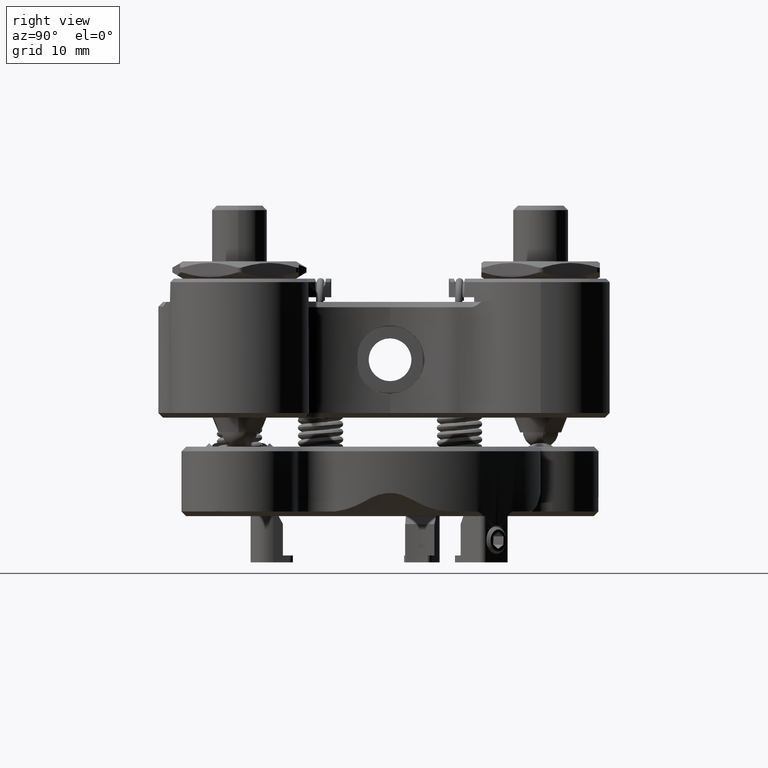
[diagram: clean part render]
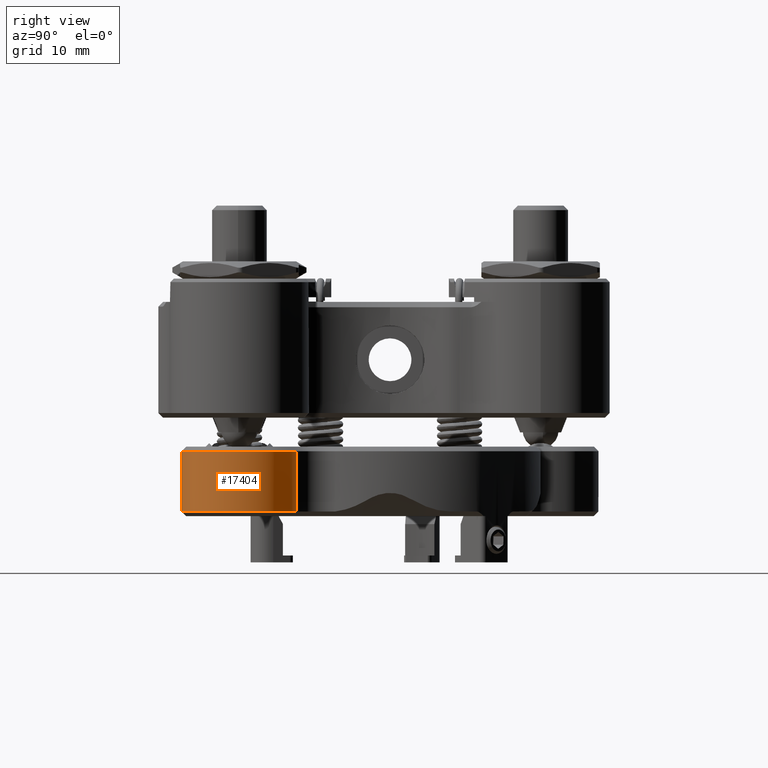
[diagram: same view with one face highlighted and labeled with its STEP entity id]
A machine part, right view. The second image highlights one B-rep face of the part: STEP entity #17404.
In plain terms, the highlighted cylindrical surface (partial cylindrical patch) has radius 6.35 mm, axis along (0, 0, 1).
Its self-contained STEP definition (entity closure, byte-faithful):
#18 = CARTESIAN_POINT ( 'NONE',  ( 19.16643875163893540, -22.29079472304871601, -19.93889061119518402 ) ) ;
#47 = CARTESIAN_POINT ( 'NONE',  ( 16.50999999999978485, -22.86000000000005272, -25.52700000000059433 ) ) ;
#272 = CARTESIAN_POINT ( 'NONE',  ( 18.05863479454287202, -22.68059692580429498, -19.93842287498150867 ) ) ;
#394 = CARTESIAN_POINT ( 'NONE',  ( 22.09981087655261334, -19.52896999693269109, -19.93872338769430996 ) ) ;
#840 = LINE ( 'NONE', #19720, #3925 ) ;
#1329 = FACE_OUTER_BOUND ( 'NONE', #24157, .T. ) ;
#1368 = DIRECTION ( 'NONE',  ( 1.311287036958844925E-14, 1.000000000000000000, 0.000000000000000000 ) ) ;
#1741 = CARTESIAN_POINT ( 'NONE',  ( 18.11057666305611491, -10.36193970020913824, -19.93833868684646760 ) ) ;
#1863 = CARTESIAN_POINT ( 'NONE',  ( 21.68650598508348892, -20.19301302862303160, -19.93873829048567003 ) ) ;
#2098 = CARTESIAN_POINT ( 'NONE',  ( 22.72054069638524965, -17.89068798876667898, -19.93762986016830041 ) ) ;
#2789 = DIRECTION ( 'NONE',  ( -0.000000000000000000, 0.000000000000000000, 1.000000000000000000 ) ) ;
#3108 = CIRCLE ( 'NONE', #23632, 6.350000000000006750 ) ;
#3717 = CARTESIAN_POINT ( 'NONE',  ( 19.21160492882166793, -10.75018763943261035, -19.93842260429730828 ) ) ;
#3732 = EDGE_CURVE ( 'NONE', #7927, #19951, #6104, .T. ) ;
#3925 = VECTOR ( 'NONE', #2789, 1000.000000000000000 ) ;
#4084 = CARTESIAN_POINT ( 'NONE',  ( 20.22487001121071515, -11.34527319561755299, -19.93889059681944076 ) ) ;
#4898 = ORIENTED_EDGE ( 'NONE', *, *, #3732, .F. ) ;
#5513 = EDGE_CURVE ( 'NONE', #7927, #11449, #19384, .T. ) ;
#5707 = CARTESIAN_POINT ( 'NONE',  ( 22.37441136137860553, -14.06674616039854087, -19.93892575446923487 ) ) ;
#5956 = CARTESIAN_POINT ( 'NONE',  ( 22.50275487366840821, -18.64635298766509663, -19.93684085038517395 ) ) ;
#6104 = LINE ( 'NONE', #47, #8756 ) ;
#6773 = DIRECTION ( 'NONE',  ( -1.311287036958845240E-14, -1.000000000000000000, 0.000000000000000000 ) ) ;
#7059 = DIRECTION ( 'NONE',  ( 0.000000000000000000, 0.000000000000000000, -1.000000000000000000 ) ) ;
#7547 = CARTESIAN_POINT ( 'NONE',  ( 21.33157055474867292, -20.66068116289770273, -19.93814990578246693 ) ) ;
#7666 = CARTESIAN_POINT ( 'NONE',  ( 16.90232530087823548, -22.85086947590320605, -19.93834062686309139 ) ) ;
#7796 = CARTESIAN_POINT ( 'NONE',  ( 19.51403859094337889, -22.11806353127566283, -19.93900067073639093 ) ) ;
#7927 = VERTEX_POINT ( 'NONE', #20385 ) ;
#8128 = CARTESIAN_POINT ( 'NONE',  ( 17.72734801847771280, -10.27778018665039284, -13.33500000000058883 ) ) ;
#8485 = CYLINDRICAL_SURFACE ( 'NONE', #10795, 6.350000000000004974 ) ;
#8756 = VECTOR ( 'NONE', #11418, 1000.000000000000000 ) ;
#9280 = CARTESIAN_POINT ( 'NONE',  ( 22.86988045928172397, -16.34214152812691978, -19.93762331428986911 ) ) ;
#9647 = CARTESIAN_POINT ( 'NONE',  ( 22.79318932476617476, -17.50731341378395811, -19.93900115361642733 ) ) ;
#9770 = CARTESIAN_POINT ( 'NONE',  ( 17.92052034477588407, -10.31551280130239512, -19.93413708363767611 ) ) ;
#10795 = AXIS2_PLACEMENT_3D ( 'NONE', #16038, #23699, #6773 ) ;
#10915 = CARTESIAN_POINT ( 'NONE',  ( 17.72734801847733976, -10.27778018665032000, -19.93900000000071415 ) ) ;
#11210 = ORIENTED_EDGE ( 'NONE', *, *, #13901, .T. ) ;
#11391 = CARTESIAN_POINT ( 'NONE',  ( 18.43990311062978549, -22.57215542978062217, -19.93903542143668872 ) ) ;
#11418 = DIRECTION ( 'NONE',  ( -0.000000000000000000, 0.000000000000000000, 1.000000000000000000 ) ) ;
#11449 = VERTEX_POINT ( 'NONE', #10915 ) ;
#11517 = CARTESIAN_POINT ( 'NONE',  ( 20.17778764570676842, -21.70826492328945534, -19.93908240861016168 ) ) ;
#11635 = CARTESIAN_POINT ( 'NONE',  ( 18.66864104573393490, -10.53499617232203533, -19.93950962035742691 ) ) ;
#11764 = CARTESIAN_POINT ( 'NONE',  ( 22.86787564128956163, -16.73476535779692043, -19.93899884495982278 ) ) ;
#12888 = EDGE_CURVE ( 'NONE', #18940, #19951, #3108, .T. ) ;
#13113 = CARTESIAN_POINT ( 'NONE',  ( 22.51375484457377141, -14.43256463242518173, -19.93891959535234548 ) ) ;
#13236 = CARTESIAN_POINT ( 'NONE',  ( 18.48463723341106046, -10.47168078844692474, -19.94055223671033517 ) ) ;
#13479 = CARTESIAN_POINT ( 'NONE',  ( 22.29562034871387866, -13.88564712612485330, -19.93873602868915285 ) ) ;
#13901 = EDGE_CURVE ( 'NONE', #11449, #18940, #840, .T. ) ;
#14691 = CARTESIAN_POINT ( 'NONE',  ( 16.50999999999978485, -22.86000000000005272, -13.33500000000058883 ) ) ;
#14983 = CARTESIAN_POINT ( 'NONE',  ( 22.80091026809526866, -15.56094577514943111, -19.93684280220277572 ) ) ;
#15099 = CARTESIAN_POINT ( 'NONE',  ( 21.79848505808265458, -20.03030762657783370, -19.93892677272785718 ) ) ;
#15219 = CARTESIAN_POINT ( 'NONE',  ( 22.36071038292118374, -19.00846951696573228, -19.93765959781693553 ) ) ;
#15470 = CARTESIAN_POINT ( 'NONE',  ( 17.72734801847733976, -10.27778018665032000, -19.93900000000071415 ) ) ;
#16038 = CARTESIAN_POINT ( 'NONE',  ( 16.50999999999980616, -16.51000000000004775, -25.52700000000059433 ) ) ;
#16828 = CARTESIAN_POINT ( 'NONE',  ( 21.83487818117254520, -13.02868990413630534, -19.93798990414901695 ) ) ;
#16949 = CARTESIAN_POINT ( 'NONE',  ( 16.51000000000012591, -22.86000000000005627, -19.93900000000068573 ) ) ;
#17177 = CARTESIAN_POINT ( 'NONE',  ( 22.73101388009469659, -15.17871678546988257, -19.93766181745037258 ) ) ;
#17312 = CARTESIAN_POINT ( 'NONE',  ( 20.53283145324772363, -11.58141724301075648, -19.93900034724138948 ) ) ;
#17404 = ADVANCED_FACE ( 'NONE', ( #1329 ), #8485, .T. ) ;
#18787 = CARTESIAN_POINT ( 'NONE',  ( 20.49415831691279521, -21.46983813975595723, -19.93870635804587366 ) ) ;
#18940 = VERTEX_POINT ( 'NONE', #8128 ) ;
#19023 = CARTESIAN_POINT ( 'NONE',  ( 17.48369094325781248, -22.78793238127979492, -19.93950718275350198 ) ) ;
#19384 = B_SPLINE_CURVE_WITH_KNOTS ( 'NONE', 3,
 ( #16949, #20770, #7666, #20895, #19023, #272, #11391, #18, #7796, #11517, #18787, #20644, #7547, #1863, #15099, #22870, #394, #15219, #5956, #2098, #9647, #11764, #9280, #14983, #17177, #22614, #13113, #5707, #13479, #21127, #16828, #21011, #22746, #17312, #4084, #22987, #3717, #11635, #13236, #1741, #9770, #15470 ),
 .UNSPECIFIED., .F., .F.,
 ( 4, 2, 2, 2, 2, 2, 2, 2, 2, 2, 2, 2, 2, 2, 2, 2, 2, 2, 2, 2, 4 ),
 ( 0.000000000000000000, 0.0005843875929499935899, 0.001168775185899987180, 0.002337550371799961783, 0.003506325557699936819, 0.004675100743599912290, 0.005843875929499886025, 0.006428263522449877664, 0.007012651115399867567, 0.008181426301299856915, 0.009350201487199847131, 0.01051897667309983735, 0.01168775185899982236, 0.01227213945194981920, 0.01285652704489981431, 0.01402530223079979585, 0.01519407741669977566, 0.01636285260259975546, 0.01753162778849973874, 0.01811601538144972864, 0.01870040297439971855 ),
 .UNSPECIFIED. ) ;
#19720 = CARTESIAN_POINT ( 'NONE',  ( 17.72734801847771280, -10.27778018665039284, -25.52700000000059433 ) ) ;
#19951 = VERTEX_POINT ( 'NONE', #14691 ) ;
#20385 = CARTESIAN_POINT ( 'NONE',  ( 16.51000000000012591, -22.86000000000005627, -19.93900000000068573 ) ) ;
#20644 = CARTESIAN_POINT ( 'NONE',  ( 21.06921927607329081, -20.94700703847589907, -19.93798977932193850 ) ) ;
#20770 = CARTESIAN_POINT ( 'NONE',  ( 16.70682300455316494, -22.86000000000004917, -19.93413708380932547 ) ) ;
#20895 = CARTESIAN_POINT ( 'NONE',  ( 17.29075935272582498, -22.81483621399327788, -19.94055266019177353 ) ) ;
#21011 = CARTESIAN_POINT ( 'NONE',  ( 21.37008311247863901, -12.40470588536095597, -19.93870840662184918 ) ) ;
#21127 = CARTESIAN_POINT ( 'NONE',  ( 22.03734384398861579, -13.35984233178652048, -19.93814900027818027 ) ) ;
#21501 = ORIENTED_EDGE ( 'NONE', *, *, #5513, .T. ) ;
#22486 = CARTESIAN_POINT ( 'NONE',  ( 16.50999999999980616, -16.51000000000004775, -13.33500000000057817 ) ) ;
#22614 = CARTESIAN_POINT ( 'NONE',  ( 22.57456185097549195, -14.61756856687071604, -19.93872505253573024 ) ) ;
#22746 = CARTESIAN_POINT ( 'NONE',  ( 21.10483812632996603, -12.10982233466019231, -19.93908243581051565 ) ) ;
#22870 = CARTESIAN_POINT ( 'NONE',  ( 22.00481996403866702, -19.69866642314736893, -19.93891850993026793 ) ) ;
#22987 = CARTESIAN_POINT ( 'NONE',  ( 19.56478681977037226, -10.92941404063545896, -19.93903587774532937 ) ) ;
#23568 = ORIENTED_EDGE ( 'NONE', *, *, #12888, .T. ) ;
#23632 = AXIS2_PLACEMENT_3D ( 'NONE', #22486, #7059, #1368 ) ;
#23699 = DIRECTION ( 'NONE',  ( -0.000000000000000000, 0.000000000000000000, 1.000000000000000000 ) ) ;
#24157 = EDGE_LOOP ( 'NONE', ( #11210, #23568, #4898, #21501 ) ) ;